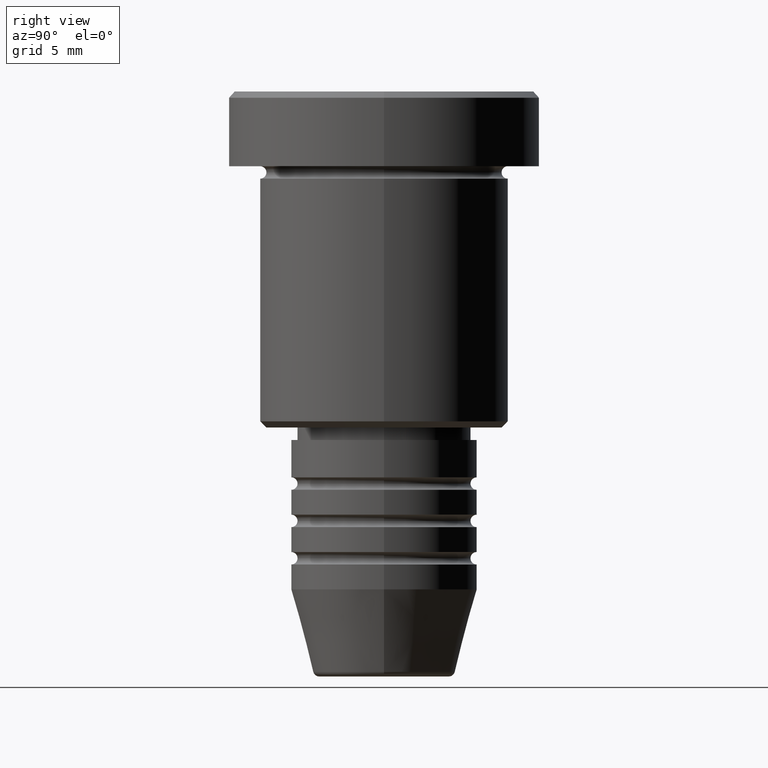
[diagram: clean part render]
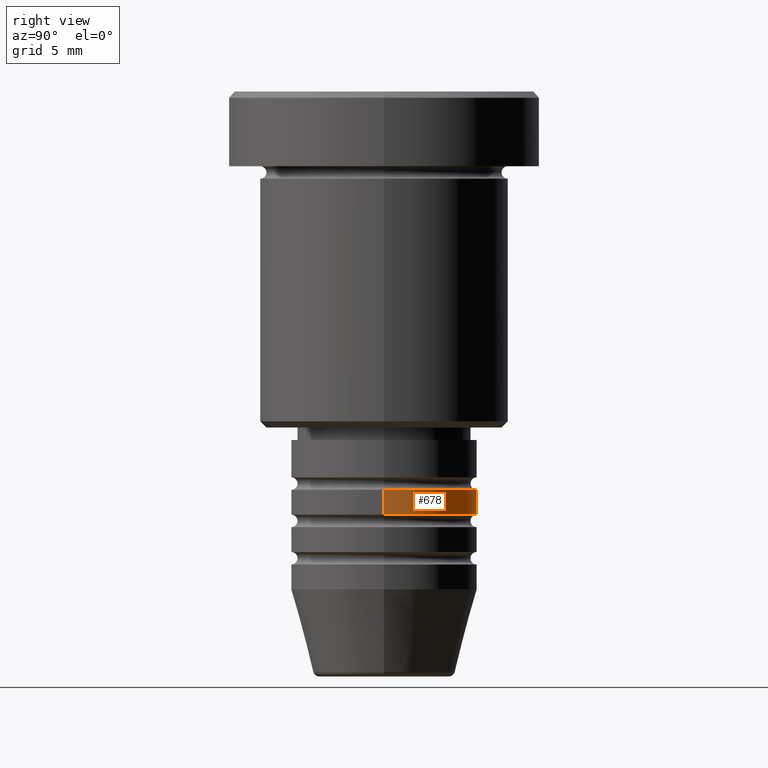
[diagram: same view with one face highlighted and labeled with its STEP entity id]
A machine part, right view. The second image highlights one B-rep face of the part: STEP entity #678.
In plain terms, the highlighted cylindrical surface (partial cylindrical patch) has radius 7.5 mm, axis along (-0, -0, 1).
Its self-contained STEP definition (entity closure, byte-faithful):
#8 = CIRCLE ( 'NONE', #122, 7.500000000000000000 ) ;
#17 = DIRECTION ( 'NONE',  ( -0.000000000000000000, -0.000000000000000000, 1.000000000000000000 ) ) ;
#27 = CIRCLE ( 'NONE', #1001, 7.500000000000000000 ) ;
#77 = DIRECTION ( 'NONE',  ( 1.000000000000000000, 0.000000000000000000, 0.000000000000000000 ) ) ;
#93 = EDGE_CURVE ( 'NONE', #458, #666, #97, .T. ) ;
#97 = LINE ( 'NONE', #823, #1144 ) ;
#110 = CYLINDRICAL_SURFACE ( 'NONE', #1175, 7.500000000000000000 ) ;
#117 = EDGE_CURVE ( 'NONE', #545, #666, #8, .T. ) ;
#118 = CARTESIAN_POINT ( 'NONE',  ( 7.500000000000000000, 0.000000000000000000, 0.000000000000000000 ) ) ;
#122 = AXIS2_PLACEMENT_3D ( 'NONE', #288, #17, #383 ) ;
#137 = DIRECTION ( 'NONE',  ( -0.000000000000000000, -0.000000000000000000, 1.000000000000000000 ) ) ;
#201 = DIRECTION ( 'NONE',  ( -0.000000000000000000, -0.000000000000000000, 1.000000000000000000 ) ) ;
#208 = CARTESIAN_POINT ( 'NONE',  ( 0.000000000000000000, 0.000000000000000000, 0.000000000000000000 ) ) ;
#277 = CARTESIAN_POINT ( 'NONE',  ( 7.500000000000000000, 0.000000000000000000, -31.99999999999998579 ) ) ;
#288 = CARTESIAN_POINT ( 'NONE',  ( 0.000000000000000000, 0.000000000000000000, -31.99999999999998579 ) ) ;
#365 = CARTESIAN_POINT ( 'NONE',  ( 0.000000000000000000, 0.000000000000000000, -33.99999999999997868 ) ) ;
#383 = DIRECTION ( 'NONE',  ( 1.000000000000000000, 0.000000000000000000, 0.000000000000000000 ) ) ;
#406 = DIRECTION ( 'NONE',  ( 1.000000000000000000, 0.000000000000000000, 0.000000000000000000 ) ) ;
#458 = VERTEX_POINT ( 'NONE', #909 ) ;
#467 = ORIENTED_EDGE ( 'NONE', *, *, #972, .F. ) ;
#489 = FACE_OUTER_BOUND ( 'NONE', #1092, .T. ) ;
#545 = VERTEX_POINT ( 'NONE', #277 ) ;
#562 = ORIENTED_EDGE ( 'NONE', *, *, #93, .T. ) ;
#585 = EDGE_CURVE ( 'NONE', #853, #458, #27, .T. ) ;
#609 = CARTESIAN_POINT ( 'NONE',  ( 7.500000000000000000, 0.000000000000000000, -33.99999999999997868 ) ) ;
#621 = DIRECTION ( 'NONE',  ( -0.000000000000000000, -0.000000000000000000, 1.000000000000000000 ) ) ;
#626 = ORIENTED_EDGE ( 'NONE', *, *, #117, .F. ) ;
#666 = VERTEX_POINT ( 'NONE', #934 ) ;
#678 = ADVANCED_FACE ( 'NONE', ( #489 ), #110, .T. ) ;
#729 = DIRECTION ( 'NONE',  ( -0.000000000000000000, -0.000000000000000000, 1.000000000000000000 ) ) ;
#823 = CARTESIAN_POINT ( 'NONE',  ( -7.500000000000000000, 9.184850993605147944E-16, 0.000000000000000000 ) ) ;
#839 = LINE ( 'NONE', #118, #930 ) ;
#853 = VERTEX_POINT ( 'NONE', #609 ) ;
#871 = ORIENTED_EDGE ( 'NONE', *, *, #585, .T. ) ;
#909 = CARTESIAN_POINT ( 'NONE',  ( -7.500000000000000000, 9.184850993605147944E-16, -33.99999999999997868 ) ) ;
#930 = VECTOR ( 'NONE', #729, 1000.000000000000000 ) ;
#934 = CARTESIAN_POINT ( 'NONE',  ( -7.500000000000000000, 9.184850993605147944E-16, -31.99999999999998579 ) ) ;
#972 = EDGE_CURVE ( 'NONE', #853, #545, #839, .T. ) ;
#1001 = AXIS2_PLACEMENT_3D ( 'NONE', #365, #621, #77 ) ;
#1092 = EDGE_LOOP ( 'NONE', ( #871, #562, #626, #467 ) ) ;
#1144 = VECTOR ( 'NONE', #201, 1000.000000000000000 ) ;
#1175 = AXIS2_PLACEMENT_3D ( 'NONE', #208, #137, #406 ) ;